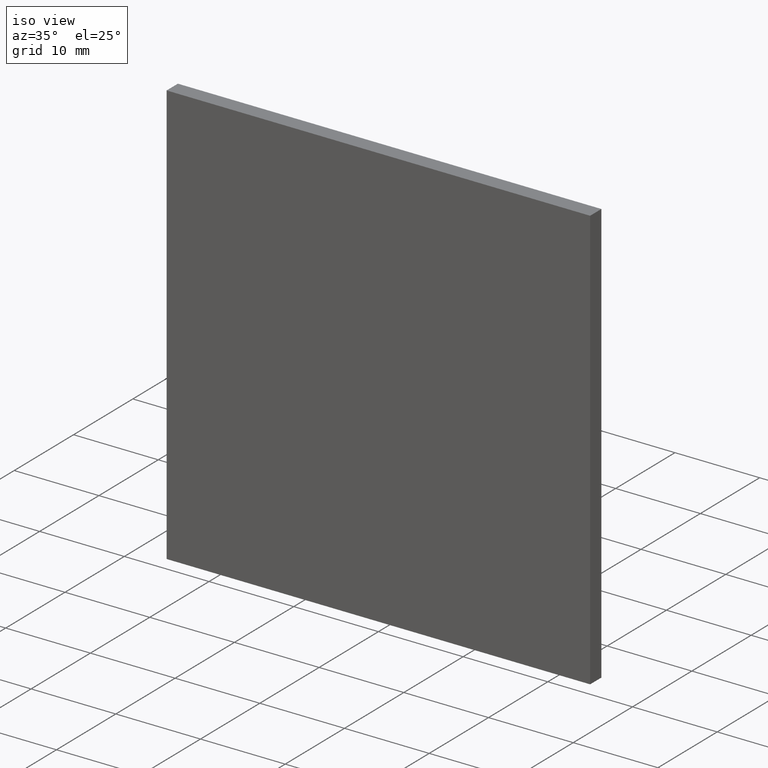
[diagram: clean part render]
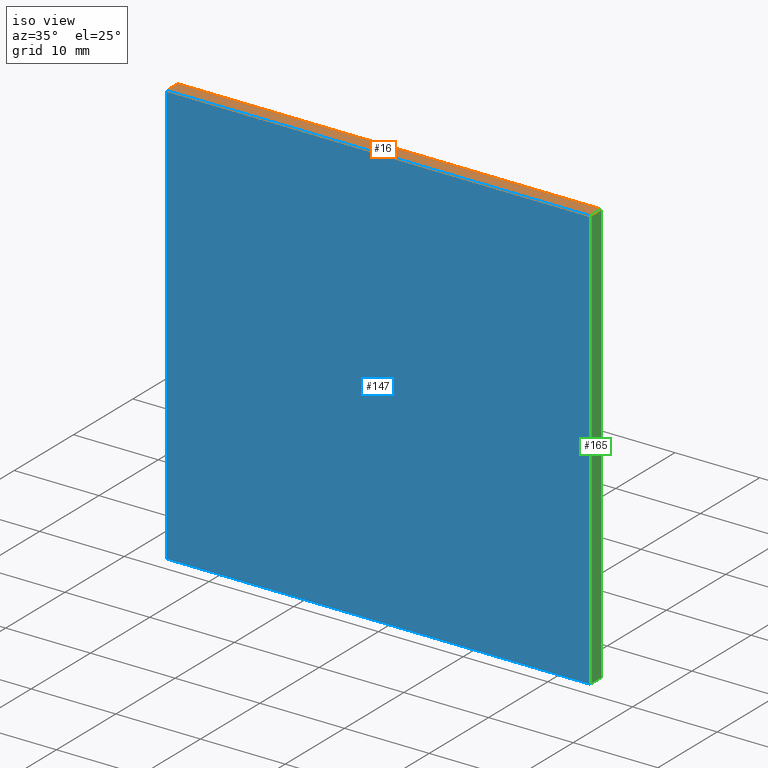
[diagram: same view with three faces highlighted in distinct colors, each labeled with its STEP entity id]
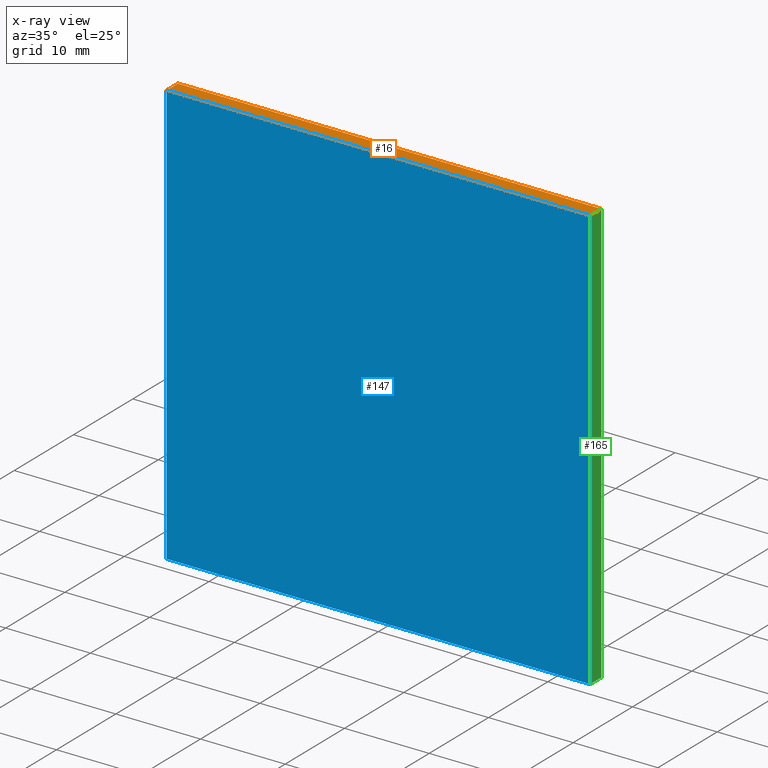
[diagram: x-ray of the same camera — body ghosted, the three highlighted faces saturated]
A machine part, iso view with three faces highlighted in distinct colors.
The next image is the same camera in x-ray (body ghosted, the three faces saturated) — at least one of them is partly hidden behind the body in this view.
Their STEP definitions:

[orange] entity #16 — the highlighted planar face has unit normal (0, 0, -1).
#1 = DIRECTION ( 'NONE',  ( 1.000000000000000000, 0.0000000000000000000, 0.0000000000000000000 ) ) ;
#5 = VECTOR ( 'NONE', #22, 1000.000000000000000 ) ;
#15 = EDGE_CURVE ( 'NONE', #200, #183, #169, .T. ) ;
#16 = ADVANCED_FACE ( 'NONE', ( #53 ), #21, .F. ) ;
#20 = EDGE_LOOP ( 'NONE', ( #159, #173, #115, #122 ) ) ;
#21 = PLANE ( 'NONE',  #144 ) ;
#22 = DIRECTION ( 'NONE',  ( -0.0000000000000000000, -1.000000000000000000, -0.0000000000000000000 ) ) ;
#31 = VERTEX_POINT ( 'NONE', #188 ) ;
#33 = CARTESIAN_POINT ( 'NONE',  ( 25.00000000000000000, 1.889999999999999900, 24.99999999999999600 ) ) ;
#37 = DIRECTION ( 'NONE',  ( 0.0000000000000000000, 0.0000000000000000000, -1.000000000000000000 ) ) ;
#39 = EDGE_CURVE ( 'NONE', #183, #131, #137, .T. ) ;
#53 = FACE_OUTER_BOUND ( 'NONE', #20, .T. ) ;
#57 = LINE ( 'NONE', #119, #186 ) ;
#65 = DIRECTION ( 'NONE',  ( -1.000000000000000000, 0.0000000000000000000, -0.0000000000000000000 ) ) ;
#83 = CARTESIAN_POINT ( 'NONE',  ( -25.00000000000000000, 1.889999999999999900, 24.99999999999999600 ) ) ;
#97 = LINE ( 'NONE', #189, #139 ) ;
#99 = EDGE_CURVE ( 'NONE', #200, #31, #97, .T. ) ;
#105 = CARTESIAN_POINT ( 'NONE',  ( -25.00000000000000000, 1.889999999999999900, 24.99999999999999600 ) ) ;
#115 = ORIENTED_EDGE ( 'NONE', *, *, #15, .F. ) ;
#119 = CARTESIAN_POINT ( 'NONE',  ( -25.00000000000000000, 0.0000000000000000000, 24.99999999999999600 ) ) ;
#122 = ORIENTED_EDGE ( 'NONE', *, *, #99, .T. ) ;
#124 = CARTESIAN_POINT ( 'NONE',  ( 25.00000000000000000, 1.889999999999999900, 24.99999999999999600 ) ) ;
#125 = VECTOR ( 'NONE', #150, 1000.000000000000000 ) ;
#131 = VERTEX_POINT ( 'NONE', #155 ) ;
#137 = LINE ( 'NONE', #124, #5 ) ;
#139 = VECTOR ( 'NONE', #180, 1000.000000000000000 ) ;
#140 = EDGE_CURVE ( 'NONE', #31, #131, #57, .T. ) ;
#144 = AXIS2_PLACEMENT_3D ( 'NONE', #105, #37, #65 ) ;
#148 = CARTESIAN_POINT ( 'NONE',  ( -25.00000000000000000, 1.889999999999999900, 24.99999999999999600 ) ) ;
#150 = DIRECTION ( 'NONE',  ( 1.000000000000000000, 0.0000000000000000000, 0.0000000000000000000 ) ) ;
#155 = CARTESIAN_POINT ( 'NONE',  ( 25.00000000000000000, 0.0000000000000000000, 24.99999999999999600 ) ) ;
#159 = ORIENTED_EDGE ( 'NONE', *, *, #140, .T. ) ;
#169 = LINE ( 'NONE', #148, #125 ) ;
#173 = ORIENTED_EDGE ( 'NONE', *, *, #39, .F. ) ;
#180 = DIRECTION ( 'NONE',  ( -0.0000000000000000000, -1.000000000000000000, -0.0000000000000000000 ) ) ;
#183 = VERTEX_POINT ( 'NONE', #33 ) ;
#186 = VECTOR ( 'NONE', #1, 1000.000000000000000 ) ;
#188 = CARTESIAN_POINT ( 'NONE',  ( -25.00000000000000000, 0.0000000000000000000, 24.99999999999999600 ) ) ;
#189 = CARTESIAN_POINT ( 'NONE',  ( -25.00000000000000000, 1.889999999999999900, 24.99999999999999600 ) ) ;
#200 = VERTEX_POINT ( 'NONE', #83 ) ;

[blue] entity #147 — the highlighted planar face has unit normal (0, -1, 0).
#1 = DIRECTION ( 'NONE',  ( 1.000000000000000000, 0.0000000000000000000, 0.0000000000000000000 ) ) ;
#6 = ORIENTED_EDGE ( 'NONE', *, *, #140, .F. ) ;
#7 = EDGE_LOOP ( 'NONE', ( #43, #6, #185, #166 ) ) ;
#14 = DIRECTION ( 'NONE',  ( 0.0000000000000000000, -0.0000000000000000000, -1.000000000000000000 ) ) ;
#27 = CARTESIAN_POINT ( 'NONE',  ( -25.00000000000000000, 0.0000000000000000000, -25.00000000000000400 ) ) ;
#31 = VERTEX_POINT ( 'NONE', #188 ) ;
#43 = ORIENTED_EDGE ( 'NONE', *, *, #52, .F. ) ;
#48 = LINE ( 'NONE', #55, #51 ) ;
#50 = DIRECTION ( 'NONE',  ( 0.0000000000000000000, 0.0000000000000000000, -1.000000000000000000 ) ) ;
#51 = VECTOR ( 'NONE', #50, 1000.000000000000000 ) ;
#52 = EDGE_CURVE ( 'NONE', #131, #104, #48, .T. ) ;
#55 = CARTESIAN_POINT ( 'NONE',  ( 25.00000000000000000, 0.0000000000000000000, 24.99999999999999600 ) ) ;
#57 = LINE ( 'NONE', #119, #186 ) ;
#62 = CARTESIAN_POINT ( 'NONE',  ( -25.00000000000000000, 0.0000000000000000000, 24.99999999999999600 ) ) ;
#63 = VECTOR ( 'NONE', #103, 1000.000000000000000 ) ;
#67 = DIRECTION ( 'NONE',  ( -0.0000000000000000000, -0.0000000000000000000, 1.000000000000000000 ) ) ;
#71 = VERTEX_POINT ( 'NONE', #102 ) ;
#85 = FACE_OUTER_BOUND ( 'NONE', #7, .T. ) ;
#102 = CARTESIAN_POINT ( 'NONE',  ( -25.00000000000000000, 0.0000000000000000000, -25.00000000000000400 ) ) ;
#103 = DIRECTION ( 'NONE',  ( -1.000000000000000000, -0.0000000000000000000, -0.0000000000000000000 ) ) ;
#104 = VERTEX_POINT ( 'NONE', #133 ) ;
#108 = CARTESIAN_POINT ( 'NONE',  ( 0.0000000000000000000, 0.0000000000000000000, 0.0000000000000000000 ) ) ;
#109 = PLANE ( 'NONE',  #149 ) ;
#119 = CARTESIAN_POINT ( 'NONE',  ( -25.00000000000000000, 0.0000000000000000000, 24.99999999999999600 ) ) ;
#121 = LINE ( 'NONE', #27, #63 ) ;
#131 = VERTEX_POINT ( 'NONE', #155 ) ;
#133 = CARTESIAN_POINT ( 'NONE',  ( 25.00000000000000000, 0.0000000000000000000, -25.00000000000000400 ) ) ;
#140 = EDGE_CURVE ( 'NONE', #31, #131, #57, .T. ) ;
#147 = ADVANCED_FACE ( 'NONE', ( #85 ), #109, .T. ) ;
#149 = AXIS2_PLACEMENT_3D ( 'NONE', #108, #170, #14 ) ;
#152 = EDGE_CURVE ( 'NONE', #104, #71, #121, .T. ) ;
#155 = CARTESIAN_POINT ( 'NONE',  ( 25.00000000000000000, 0.0000000000000000000, 24.99999999999999600 ) ) ;
#156 = LINE ( 'NONE', #62, #161 ) ;
#161 = VECTOR ( 'NONE', #67, 1000.000000000000000 ) ;
#166 = ORIENTED_EDGE ( 'NONE', *, *, #152, .F. ) ;
#167 = EDGE_CURVE ( 'NONE', #71, #31, #156, .T. ) ;
#170 = DIRECTION ( 'NONE',  ( 0.0000000000000000000, -1.000000000000000000, 0.0000000000000000000 ) ) ;
#185 = ORIENTED_EDGE ( 'NONE', *, *, #167, .F. ) ;
#186 = VECTOR ( 'NONE', #1, 1000.000000000000000 ) ;
#188 = CARTESIAN_POINT ( 'NONE',  ( -25.00000000000000000, 0.0000000000000000000, 24.99999999999999600 ) ) ;

[green] entity #165 — the highlighted planar face has unit normal (-1, 0, 0).
#5 = VECTOR ( 'NONE', #22, 1000.000000000000000 ) ;
#22 = DIRECTION ( 'NONE',  ( -0.0000000000000000000, -1.000000000000000000, -0.0000000000000000000 ) ) ;
#24 = DIRECTION ( 'NONE',  ( 0.0000000000000000000, 0.0000000000000000000, -1.000000000000000000 ) ) ;
#29 = VECTOR ( 'NONE', #24, 1000.000000000000000 ) ;
#33 = CARTESIAN_POINT ( 'NONE',  ( 25.00000000000000000, 1.889999999999999900, 24.99999999999999600 ) ) ;
#35 = CARTESIAN_POINT ( 'NONE',  ( 25.00000000000000000, 1.889999999999999900, 24.99999999999999600 ) ) ;
#39 = EDGE_CURVE ( 'NONE', #183, #131, #137, .T. ) ;
#48 = LINE ( 'NONE', #55, #51 ) ;
#50 = DIRECTION ( 'NONE',  ( 0.0000000000000000000, 0.0000000000000000000, -1.000000000000000000 ) ) ;
#51 = VECTOR ( 'NONE', #50, 1000.000000000000000 ) ;
#52 = EDGE_CURVE ( 'NONE', #131, #104, #48, .T. ) ;
#55 = CARTESIAN_POINT ( 'NONE',  ( 25.00000000000000000, 0.0000000000000000000, 24.99999999999999600 ) ) ;
#88 = FACE_OUTER_BOUND ( 'NONE', #112, .T. ) ;
#104 = VERTEX_POINT ( 'NONE', #133 ) ;
#112 = EDGE_LOOP ( 'NONE', ( #126, #154, #197, #114 ) ) ;
#114 = ORIENTED_EDGE ( 'NONE', *, *, #39, .T. ) ;
#118 = DIRECTION ( 'NONE',  ( 0.0000000000000000000, 0.0000000000000000000, 1.000000000000000000 ) ) ;
#124 = CARTESIAN_POINT ( 'NONE',  ( 25.00000000000000000, 1.889999999999999900, 24.99999999999999600 ) ) ;
#126 = ORIENTED_EDGE ( 'NONE', *, *, #52, .T. ) ;
#131 = VERTEX_POINT ( 'NONE', #155 ) ;
#133 = CARTESIAN_POINT ( 'NONE',  ( 25.00000000000000000, 0.0000000000000000000, -25.00000000000000400 ) ) ;
#134 = VERTEX_POINT ( 'NONE', #151 ) ;
#136 = LINE ( 'NONE', #35, #29 ) ;
#137 = LINE ( 'NONE', #124, #5 ) ;
#138 = AXIS2_PLACEMENT_3D ( 'NONE', #202, #168, #118 ) ;
#151 = CARTESIAN_POINT ( 'NONE',  ( 25.00000000000000000, 1.889999999999999900, -25.00000000000000400 ) ) ;
#154 = ORIENTED_EDGE ( 'NONE', *, *, #176, .F. ) ;
#155 = CARTESIAN_POINT ( 'NONE',  ( 25.00000000000000000, 0.0000000000000000000, 24.99999999999999600 ) ) ;
#163 = DIRECTION ( 'NONE',  ( -0.0000000000000000000, -1.000000000000000000, -0.0000000000000000000 ) ) ;
#165 = ADVANCED_FACE ( 'NONE', ( #88 ), #201, .F. ) ;
#168 = DIRECTION ( 'NONE',  ( -1.000000000000000000, 0.0000000000000000000, 0.0000000000000000000 ) ) ;
#176 = EDGE_CURVE ( 'NONE', #134, #104, #187, .T. ) ;
#183 = VERTEX_POINT ( 'NONE', #33 ) ;
#187 = LINE ( 'NONE', #190, #194 ) ;
#190 = CARTESIAN_POINT ( 'NONE',  ( 25.00000000000000000, 1.889999999999999900, -25.00000000000000400 ) ) ;
#194 = VECTOR ( 'NONE', #163, 1000.000000000000000 ) ;
#195 = EDGE_CURVE ( 'NONE', #183, #134, #136, .T. ) ;
#197 = ORIENTED_EDGE ( 'NONE', *, *, #195, .F. ) ;
#201 = PLANE ( 'NONE',  #138 ) ;
#202 = CARTESIAN_POINT ( 'NONE',  ( 25.00000000000000000, 1.889999999999999900, 24.99999999999999600 ) ) ;